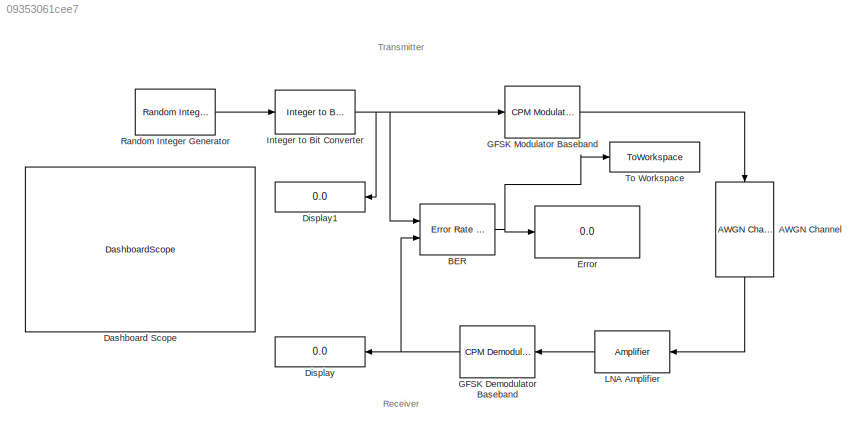
MODEL slx_09353061cee7
KIND model
CONFIG AbsTol = auto
CONFIG EnableMultiTasking = off
CONFIG FixedStep = auto
CONFIG MaxStep = auto
CONFIG MinStep = auto
CONFIG RelTol = 1e-3
CONFIG SampleTimeConstraint = Unconstrained
CONFIG SolverName = VariableStepAuto
CONFIG StartTime = 0.0
CONFIG StopTime = 1
BLOCK [Reference] AWGN Channel  REF=commchan3/AWGN
Channel
  NameLocation = left
  Ports = [1, 1]
  SourceBlock = commchan3/AWGN\nChannel
  SourceProductBaseCode = CM
  SourceType = AWGN Channel
  UserDataPersistent = on
BLOCK [Reference] BER  REF=commsink2/Error Rate
Calculation
  Ports = [2, 1]
  SourceBlock = commsink2/Error Rate\nCalculation
  SourceProductBaseCode = CM
  SourceType = Error Rate Calculation
BLOCK [DashboardScope] Dashboard Scope
BLOCK [Display] Display
  Decimation = 1
  NameLocation = top
  Ports = [1]
BLOCK [Display] Display1
  Decimation = 1
  NameLocation = top
  Ports = [1]
BLOCK [Display] Error
  Decimation = 1
  Ports = [1]
BLOCK [Reference] GFSK Demodulator Baseband  REF=commdigbbndcpm2/CPM
Demodulator
Baseband
  NameLocation = top
  Ports = [1, 1]
  SourceBlock = commdigbbndcpm2/CPM\nDemodulator\nBaseband
  SourceProductBaseCode = CM
  SourceType = CPM Demodulator Baseband
  UserDataPersistent = on
BLOCK [Reference] GFSK Modulator Baseband  REF=commdigbbndcpm2/CPM
Modulator
Baseband
  Ports = [1, 1]
  SourceBlock = commdigbbndcpm2/CPM\nModulator\nBaseband
  SourceProductBaseCode = CM
  SourceType = CPM Modulator Baseband
  UserDataPersistent = on
BLOCK [Reference] Integer to Bit Converter  REF=commutil2/Integer to Bit
Converter
  Ports = [1, 1]
  SourceBlock = commutil2/Integer to Bit\nConverter
  SourceProductBaseCode = CM
  SourceType = Integer to Bit Converter
BLOCK [Reference] LNA Amplifier  REF=commrflib2/Amplifier
  NameLocation = top
  Ports = [1, 1]
  SourceBlock = commrflib2/Amplifier
  SourceProductBaseCode = CM
  SourceType = rf.Amplifier
BLOCK [Reference] Random Integer Generator  REF=commrandsrc3/Random Integer
Generator
  Ports = [0, 1]
  SourceBlock = commrandsrc3/Random Integer\nGenerator
  SourceProductBaseCode = CM
  SourceType = Random Integer Generator
BLOCK [ToWorkspace] To Workspace
  FixptAsFi = on
  MaxDataPoints = inf
  Ports = [1]
  SampleTime = -1
  SaveFormat = Timeseries
  VariableName = ber
ANNOTATION (root): Receiver
ANNOTATION (root): Transmitter
LINE AWGN Channel:1 -> LNA Amplifier:1
NET BER:1 -> Error:1, To Workspace:1
NET GFSK Demodulator Baseband:1 -> BER:2, Display:1
LINE GFSK Modulator Baseband:1 -> AWGN Channel:1
NET Integer to Bit Converter:1 -> BER:1, Display1:1, GFSK Modulator Baseband:1
LINE LNA Amplifier:1 -> GFSK Demodulator Baseband:1
LINE Random Integer Generator:1 -> Integer to Bit Converter:1
note: NET lines group one-source signal fan-out (src -> all destinations, sorted); 1:1 wires keep LINE
